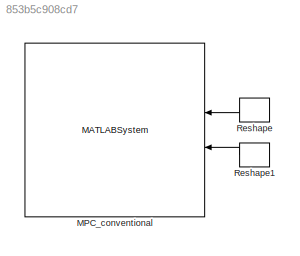
MODEL slx_853b5c908cd7
KIND model
CONFIG AbsTol = auto
CONFIG EnableMultiTasking = off
CONFIG FixedStep = auto
CONFIG MaxStep = auto
CONFIG MinStep = auto
CONFIG RelTol = 1e-3
CONFIG SampleTimeConstraint = Unconstrained
CONFIG Solver = VariableStepAuto
CONFIG SolverName = VariableStepAuto
CONFIG StartTime = 0.0
CONFIG StopTime = 10.0
BLOCK [MATLABSystem] MPC_conventional
  A = A
  Bd = Bd
  Bu = Bu
  C = C
  D = D
  MaskDisplay = disp('MPCcasadi_v1_0');\nport_label('input',1,'xHat');\nport_label('input',2,'dist');\nport_label('input',3,'cE');\nport_label('input',4,'on');\nport_label('output',1,'mv');\nport_label('output',2,'xStar');\nport_label('output',3,'sStar');\nport_label('output',4,'uStar');\nport_label('output',5,'yStarOut');
  MaskType = MPCcasadi_v1_0
  N = nHor
  Ports = [4, 5]
  R = R
  SimulateUsing = Interpreted execution
  System = MPCcasadi_v1_0
  T = T
  TimeStep = TimeStep
  nDst = nDst
  nIn = nMV
  nOut = chY
  nState = nStt
  uMax = uMax
  uMin = uMin
  yMax = yMax
  yMin = yMin
BLOCK [Reshape] Reshape
  OutputDimensionality = Customize
  OutputDimensions = [96, 1]
  Ports = [1, 1]
BLOCK [Reshape] Reshape1
  OutputDimensionality = Customize
  OutputDimensions = [96, 1]
  Ports = [1, 1]
LINE Reshape1:1 -> MPC_conventional:3
LINE Reshape:1 -> MPC_conventional:2
